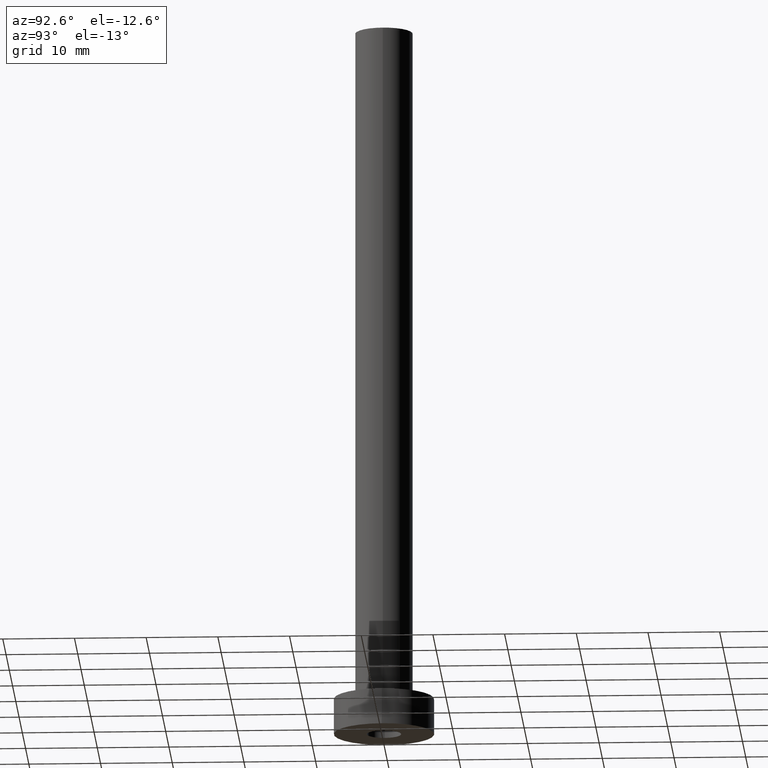
[diagram: clean part render]
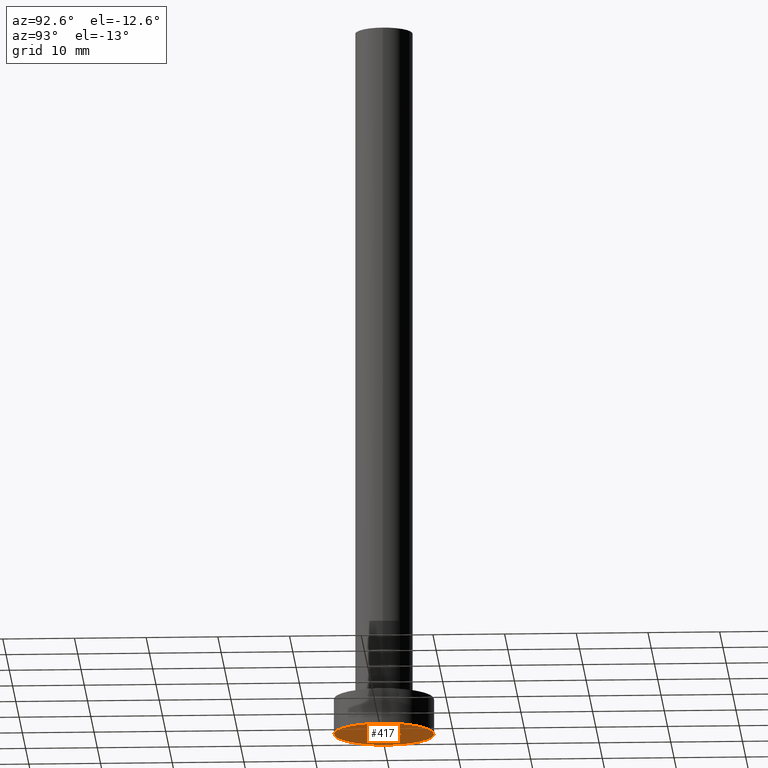
[diagram: same view with one face highlighted and labeled with its STEP entity id]
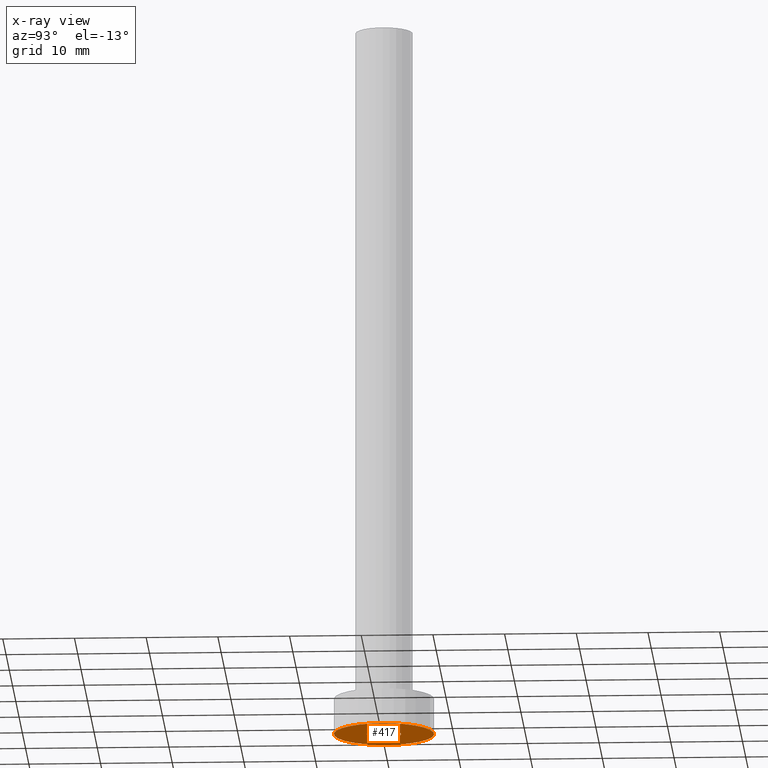
[diagram: x-ray of the same camera — body ghosted, the highlighted face saturated]
A machine part, auxiliary view. The second image highlights one B-rep face of the part: STEP entity #417.
The next image is the same camera in x-ray: the body ghosted, the highlighted face saturated — about 0% of this face is hidden behind the body in this view.
In plain terms, the highlighted planar face has unit normal (0, 0, 1).
Its self-contained STEP definition (entity closure, byte-faithful):
#2 = ORIENTED_EDGE ( 'NONE', *, *, #439, .F. ) ;
#13 = CIRCLE ( 'NONE', #191, 2.399999999999999911 ) ;
#17 = CARTESIAN_POINT ( 'NONE',  ( 0.000000000000000000, 0.000000000000000000, 0.000000000000000000 ) ) ;
#24 = DIRECTION ( 'NONE',  ( 1.000000000000000000, 0.000000000000000000, -0.000000000000000000 ) ) ;
#27 = EDGE_CURVE ( 'NONE', #387, #179, #53, .T. ) ;
#37 = CIRCLE ( 'NONE', #162, 2.399999999999999911 ) ;
#39 = DIRECTION ( 'NONE',  ( 0.000000000000000000, 0.000000000000000000, 1.000000000000000000 ) ) ;
#50 = DIRECTION ( 'NONE',  ( 1.000000000000000000, 0.000000000000000000, 0.000000000000000000 ) ) ;
#53 = CIRCLE ( 'NONE', #321, 7.000000000000000000 ) ;
#73 = CARTESIAN_POINT ( 'NONE',  ( 2.399999999999999911, 2.939152317953647106E-16, 0.000000000000000000 ) ) ;
#87 = DIRECTION ( 'NONE',  ( 0.000000000000000000, 0.000000000000000000, 1.000000000000000000 ) ) ;
#90 = DIRECTION ( 'NONE',  ( -0.000000000000000000, -0.000000000000000000, -1.000000000000000000 ) ) ;
#119 = AXIS2_PLACEMENT_3D ( 'NONE', #268, #87, #408 ) ;
#121 = ORIENTED_EDGE ( 'NONE', *, *, #27, .F. ) ;
#139 = ORIENTED_EDGE ( 'NONE', *, *, #210, .F. ) ;
#150 = DIRECTION ( 'NONE',  ( 1.000000000000000000, 0.000000000000000000, 0.000000000000000000 ) ) ;
#162 = AXIS2_PLACEMENT_3D ( 'NONE', #364, #360, #150 ) ;
#164 = DIRECTION ( 'NONE',  ( 0.000000000000000000, 0.000000000000000000, 1.000000000000000000 ) ) ;
#176 = AXIS2_PLACEMENT_3D ( 'NONE', #369, #164, #24 ) ;
#179 = VERTEX_POINT ( 'NONE', #331 ) ;
#191 = AXIS2_PLACEMENT_3D ( 'NONE', #17, #90, #50 ) ;
#192 = ORIENTED_EDGE ( 'NONE', *, *, #363, .F. ) ;
#210 = EDGE_CURVE ( 'NONE', #230, #266, #37, .T. ) ;
#230 = VERTEX_POINT ( 'NONE', #73 ) ;
#266 = VERTEX_POINT ( 'NONE', #399 ) ;
#267 = PLANE ( 'NONE',  #176 ) ;
#268 = CARTESIAN_POINT ( 'NONE',  ( 0.000000000000000000, 0.000000000000000000, 0.000000000000000000 ) ) ;
#284 = EDGE_LOOP ( 'NONE', ( #2, #139 ) ) ;
#315 = CIRCLE ( 'NONE', #119, 7.000000000000000000 ) ;
#321 = AXIS2_PLACEMENT_3D ( 'NONE', #450, #39, #352 ) ;
#331 = CARTESIAN_POINT ( 'NONE',  ( 7.000000000000000000, 8.572527594031473190E-16, 0.000000000000000000 ) ) ;
#336 = CARTESIAN_POINT ( 'NONE',  ( -7.000000000000000000, 0.000000000000000000, 0.000000000000000000 ) ) ;
#341 = EDGE_LOOP ( 'NONE', ( #121, #192 ) ) ;
#352 = DIRECTION ( 'NONE',  ( 1.000000000000000000, 0.000000000000000000, 0.000000000000000000 ) ) ;
#360 = DIRECTION ( 'NONE',  ( -0.000000000000000000, -0.000000000000000000, -1.000000000000000000 ) ) ;
#363 = EDGE_CURVE ( 'NONE', #179, #387, #315, .T. ) ;
#364 = CARTESIAN_POINT ( 'NONE',  ( 0.000000000000000000, 0.000000000000000000, 0.000000000000000000 ) ) ;
#369 = CARTESIAN_POINT ( 'NONE',  ( 0.000000000000000000, 0.000000000000000000, 0.000000000000000000 ) ) ;
#387 = VERTEX_POINT ( 'NONE', #336 ) ;
#399 = CARTESIAN_POINT ( 'NONE',  ( -2.399999999999999911, 0.000000000000000000, 0.000000000000000000 ) ) ;
#407 = FACE_BOUND ( 'NONE', #284, .T. ) ;
#408 = DIRECTION ( 'NONE',  ( 1.000000000000000000, 0.000000000000000000, 0.000000000000000000 ) ) ;
#413 = FACE_OUTER_BOUND ( 'NONE', #341, .T. ) ;
#417 = ADVANCED_FACE ( 'NONE', ( #407, #413 ), #267, .F. ) ;
#439 = EDGE_CURVE ( 'NONE', #266, #230, #13, .T. ) ;
#450 = CARTESIAN_POINT ( 'NONE',  ( 0.000000000000000000, 0.000000000000000000, 0.000000000000000000 ) ) ;